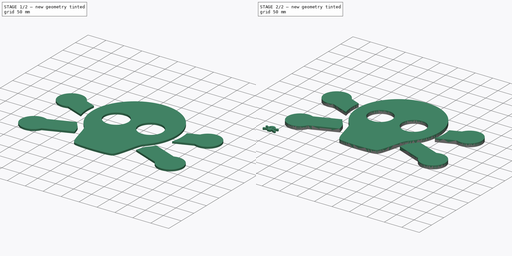
[diagram: build sequence overview — one tinted view per stage of 2, left to right]
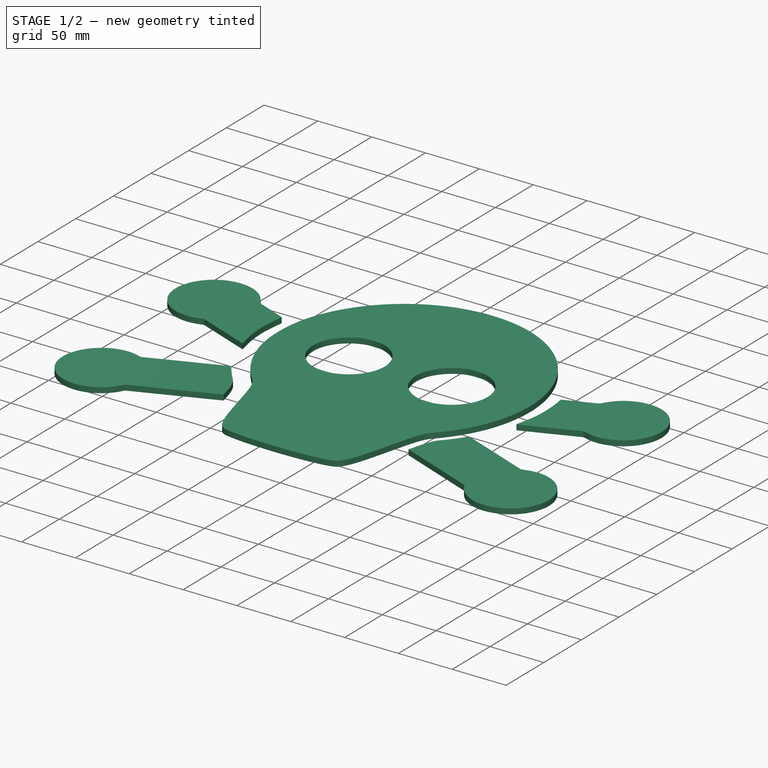
[diagram: stage 1 of 2 — iso view after this stage's code; geometry added in this stage tinted green]
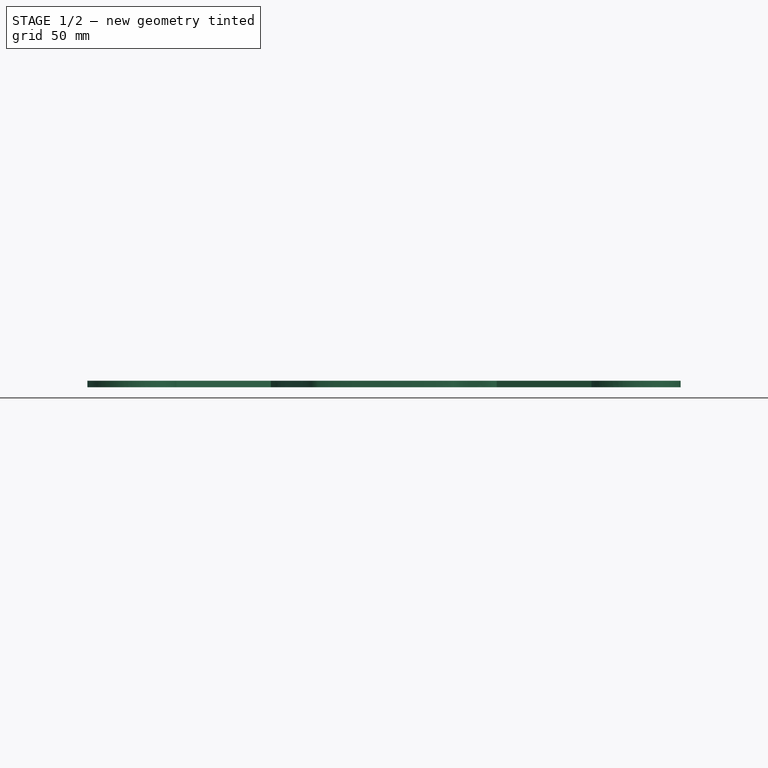
[diagram: stage 1 of 2 — front view after this stage's code; geometry added in this stage tinted green]
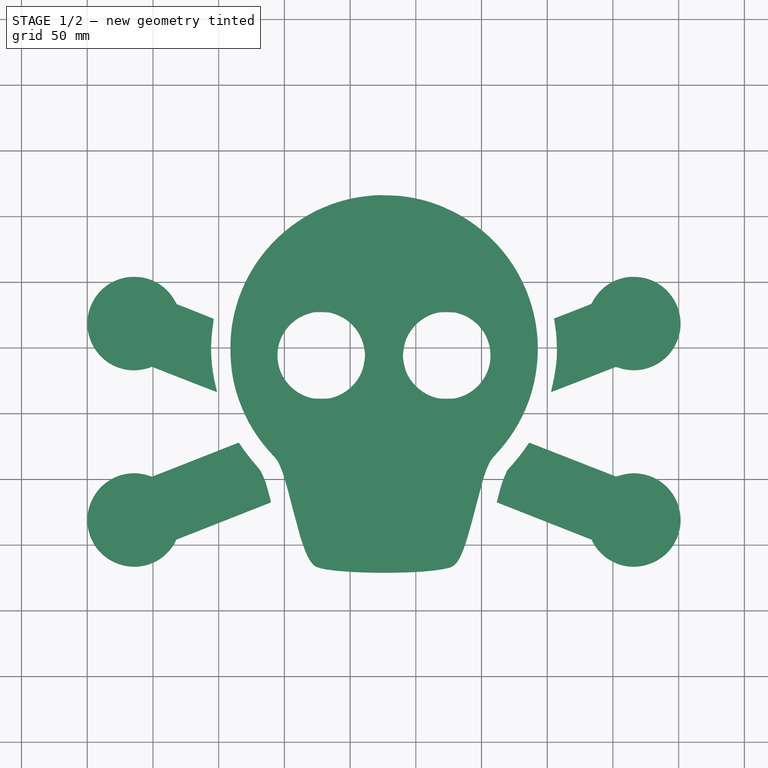
[diagram: stage 1 of 2 — top view after this stage's code; geometry added in this stage tinted green]
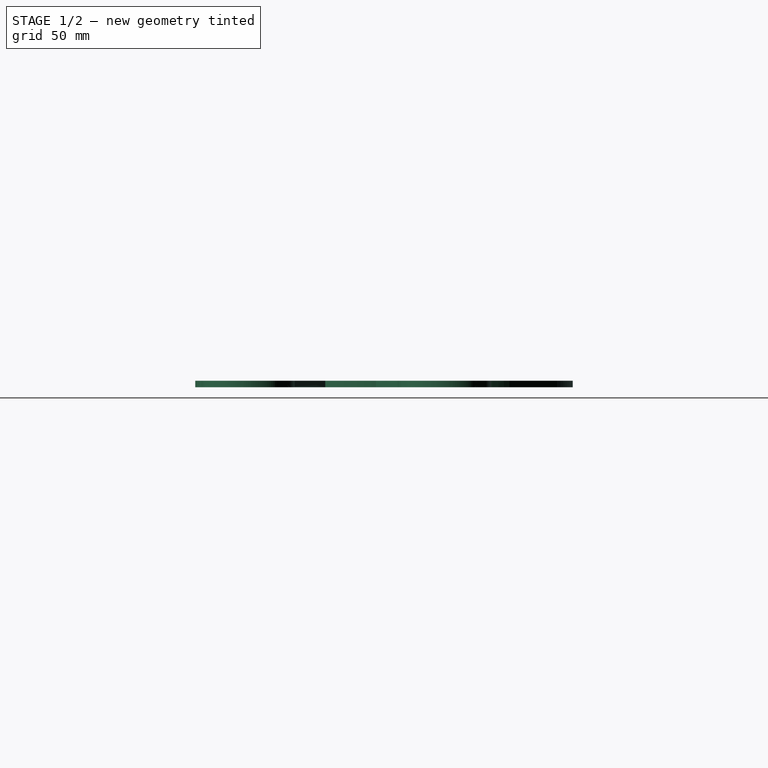
[diagram: stage 1 of 2 — right view after this stage's code; geometry added in this stage tinted green]
FCSTD DOCUMENT  (FreeCAD 0.17R13541 (Git))
Label: porteClefClara
License: All rights reserved
LicenseURL: http://en.wikipedia.org/wiki/All_rights_reserved
objects: Part::Feature×7, Part::FeaturePython×2, Part::Extrusion×2, App::DocumentObjectGroup×1, PartDesign::FeatureBase×1, Sketcher::SketchObject×1, PartDesign::Pad×1, PartDesign::Body×1
note: 16 computed .brp shape members not serialized (recipe doc carries the construction recipe); baked Part::Feature solids carry a one-line shape summary decoded from their .brp

FEATURE [Part::Extrusion] Extrude001
  Base = -> Connect
  Dir = (0,0,1)
  DirMode = 2
  FaceMakerClass = Part::FaceMakerBullseye
  LengthFwd = 5
  LengthRev = 0
  Solid = true
  Symmetric = false
FEATURE [App::DocumentObjectGroup] Groupe  label="Crane"
  Group = -> [Extrude]
FEATURE [PartDesign::FeatureBase] BaseFeature
  BaseFeature = -> Extrude001
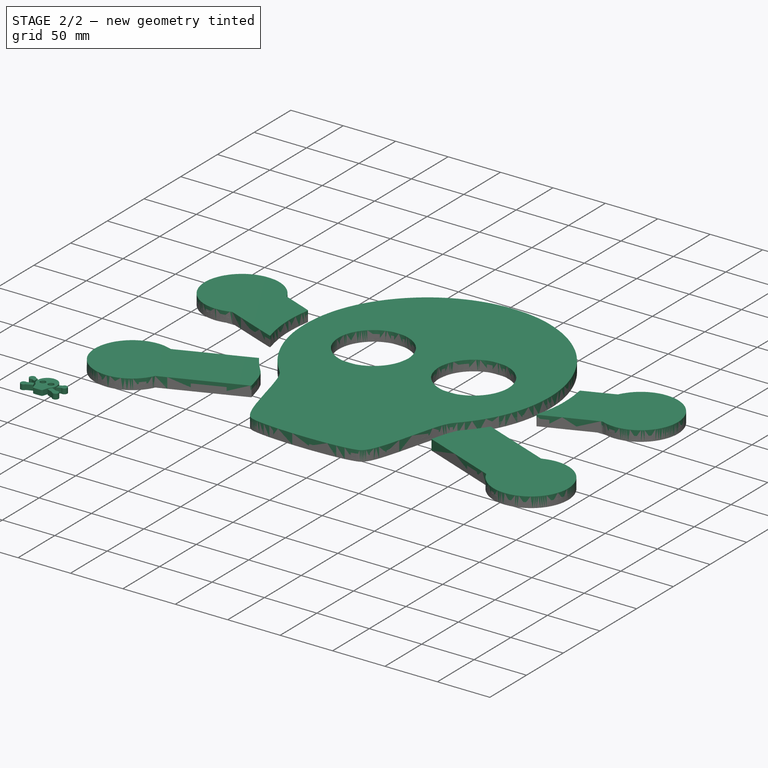
[diagram: stage 2 of 2 — iso view after this stage's code; geometry added in this stage tinted green]
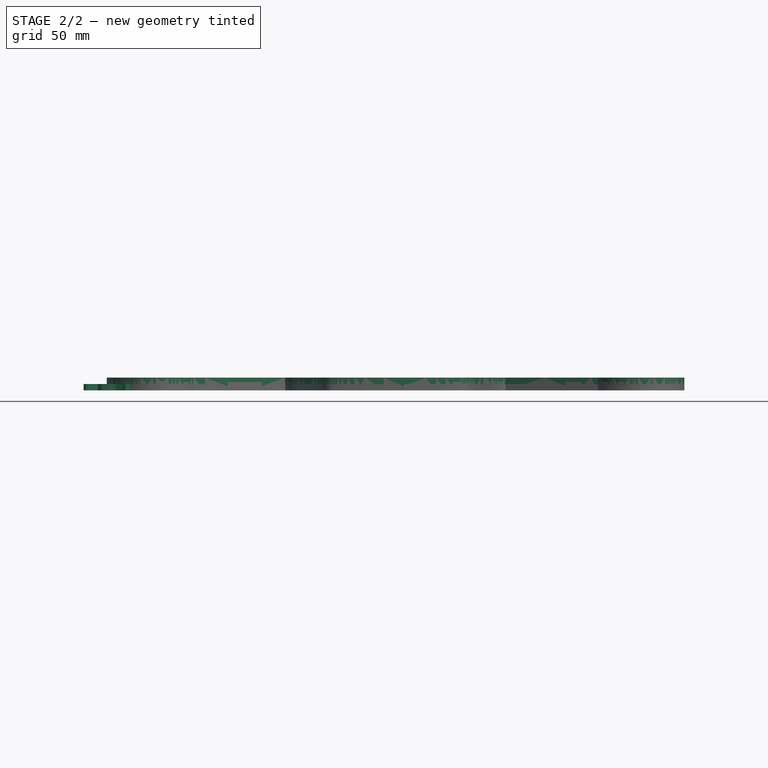
[diagram: stage 2 of 2 — front view after this stage's code; geometry added in this stage tinted green]
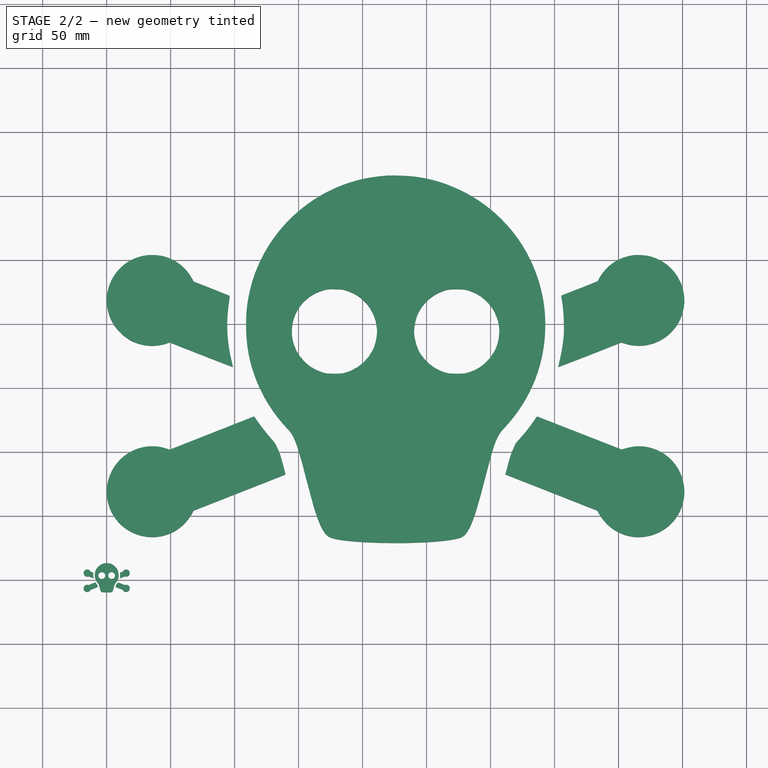
[diagram: stage 2 of 2 — top view after this stage's code; geometry added in this stage tinted green]
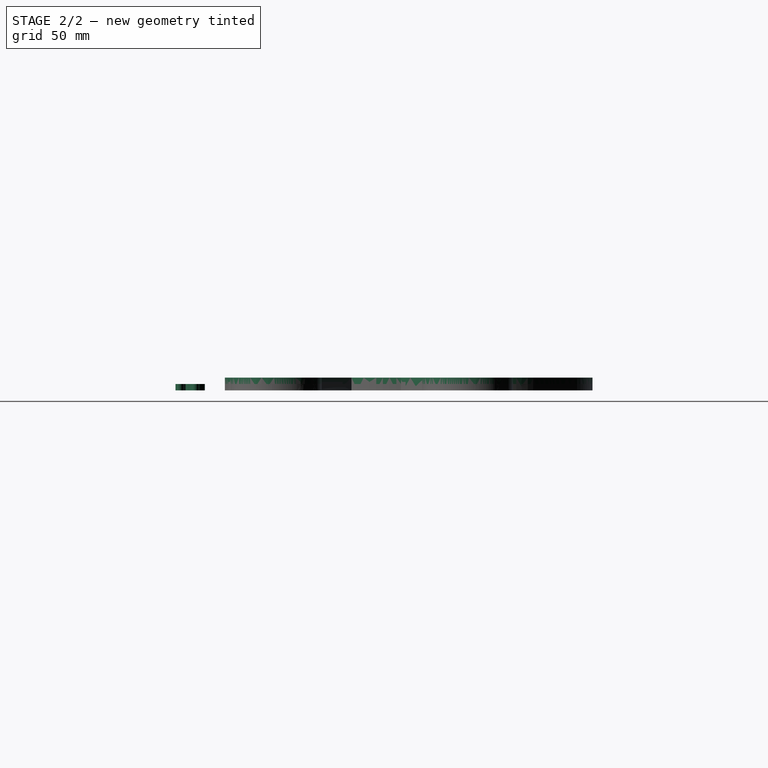
[diagram: stage 2 of 2 — right view after this stage's code; geometry added in this stage tinted green]
FEATURE [Part::Feature] Path
  shape: bbox 235 x 289 x 2e-07 mm, 0 faces, 0 solids (baked)
FEATURE [Part::Feature] Path001
  shape: bbox 67.36 x 66.08 x 2e-07 mm, 0 faces, 0 solids (baked)
FEATURE [Part::Feature] Path002
  shape: bbox 67.96 x 66.11 x 2e-07 mm, 0 faces, 0 solids (baked)
FEATURE [Part::Feature] Path003
  shape: bbox 101.2 x 87.8 x 2e-07 mm, 0 faces, 0 solids (baked)
FEATURE [Part::Feature] Path004
  shape: bbox 100.8 x 87.88 x 2e-07 mm, 0 faces, 0 solids (baked)
FEATURE [Part::Feature] Path005
  shape: bbox 141.4 x 95.27 x 2e-07 mm, 0 faces, 0 solids (baked)
FEATURE [Part::Feature] Path006
  shape: bbox 140.4 x 95.21 x 2e-07 mm, 0 faces, 0 solids (baked)
FEATURE [Part::FeaturePython] Connect  label="crane"  # WARN: FeaturePython — macro-defined, semantics opaque (R4)
  Objects = -> [Path,Path005,Path003,Path006,Path004,Path001,Path002]
  Tolerance = 0
FEATURE [Part::Extrusion] Extrude
  Base = -> Connect
  Dir = (0,0,1)
  DirMode = 2
  FaceMakerClass = Part::FaceMakerBullseye
  LengthFwd = 10
  LengthRev = 0
  Solid = true
  Symmetric = false
FEATURE [Part::FeaturePython] Scale  # Draft clone (typed FeaturePython)
  Fuse = false
  Objects = -> [Extrude001]
  Placement = pos=(-18,-12,0) rot=(0,0,1;0rad)
  Scale = (0.08,0.08,1)
FEATURE [Sketcher::SketchObject] Sketch
  MapMode = 5
  Support = -> [XY_Plane]
  sketch-geometry (4):
    g0: LineSegment StartX=-20 StartY=20 StartZ=0 EndX=20 EndY=20 EndZ=0
    g1: LineSegment StartX=20 StartY=20 StartZ=0 EndX=20 EndY=-20 EndZ=0
    g2: LineSegment StartX=20 StartY=-20 StartZ=0 EndX=-20 EndY=-20 EndZ=0
    g3: LineSegment StartX=-20 StartY=-20 StartZ=0 EndX=-20 EndY=20 EndZ=0
  constraints (12):
    c: Coincident(g0,g1)
    c: Coincident(g1,g2)
    c: Coincident(g2,g3)
    c: Coincident(g3,g0)
    c: Horizontal(g0)
    c: Horizontal(g2)
    c: Vertical(g1)
    c: Vertical(g3)
    c: DistanceY(g1,g1) = 40
    c: DistanceX(g2,g2) = 40
    c: Symmetric(g0,g0,g-2)
    c: Symmetric(g0,g2,g-1)
FEATURE [PartDesign::Pad] Pad
  BaseFeature = -> BaseFeature
  Length = 10
  Length2 = 10
  Profile = -> Sketch
  Type = 0
FEATURE [PartDesign::Body] Body
  BaseFeature = -> Extrude001
  Group = -> [BaseFeature,Sketch,Pad]
  Origin = -> Origin
  Tip = -> Pad
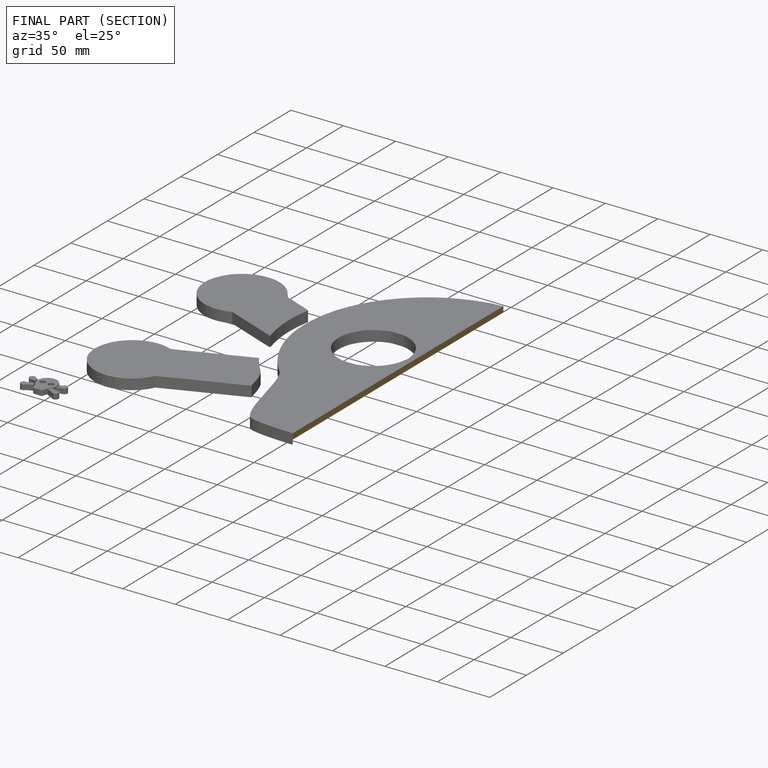
[diagram: finished part — half-section view (interior)]
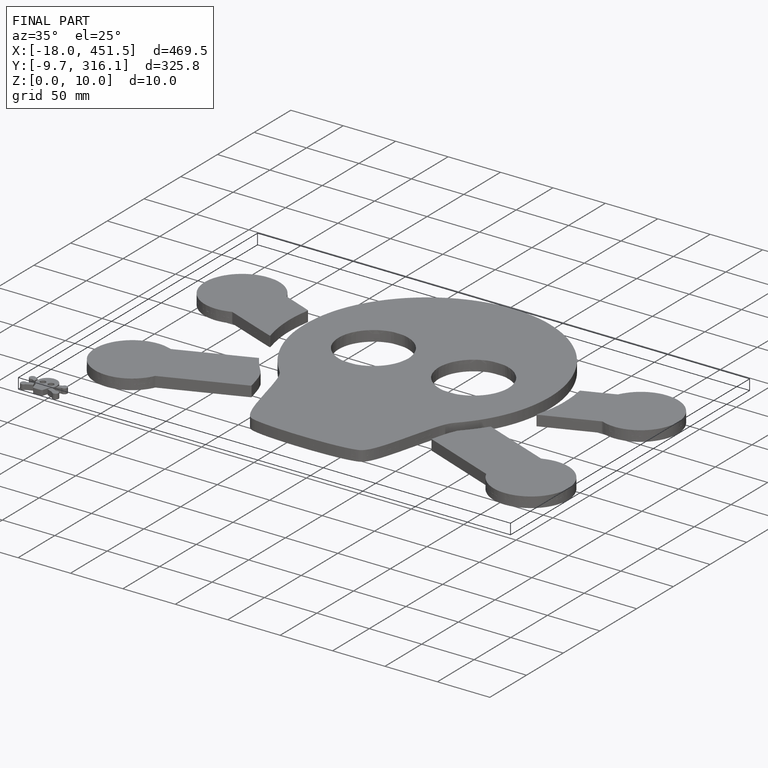
[diagram: finished part — iso view with bounding-box wireframe]
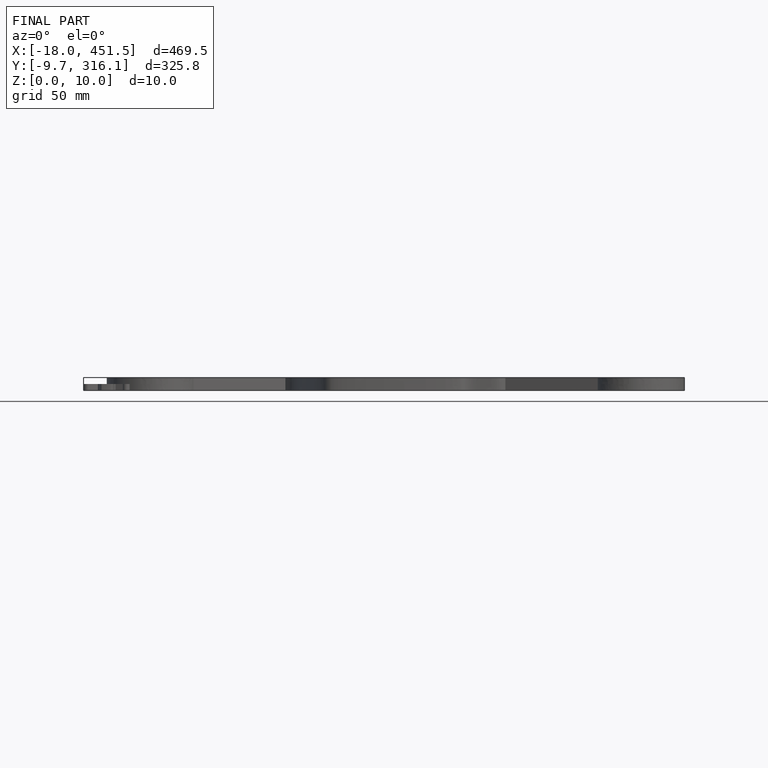
[diagram: finished part — front view with bounding-box wireframe]
